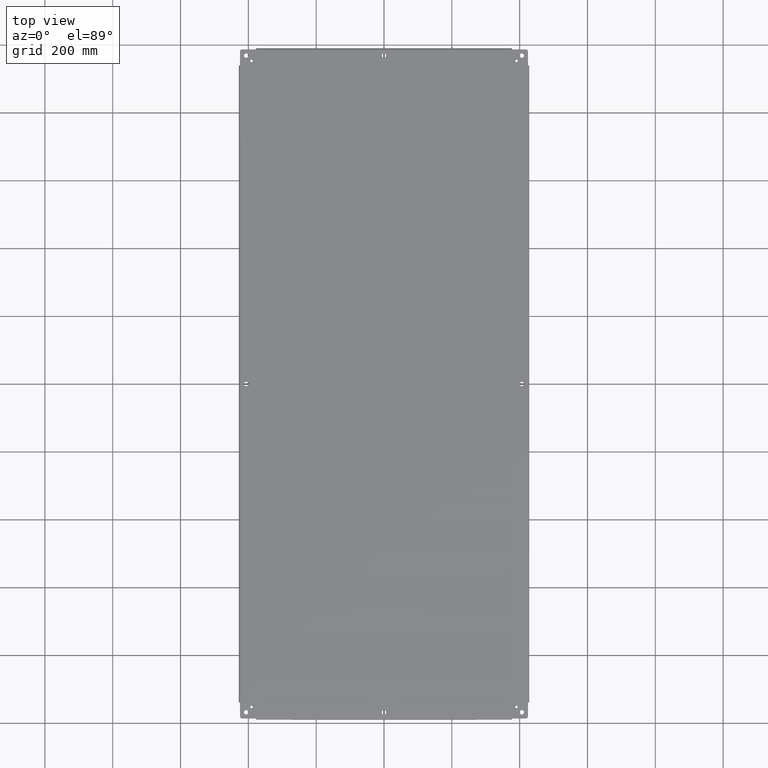
[diagram: clean part render]
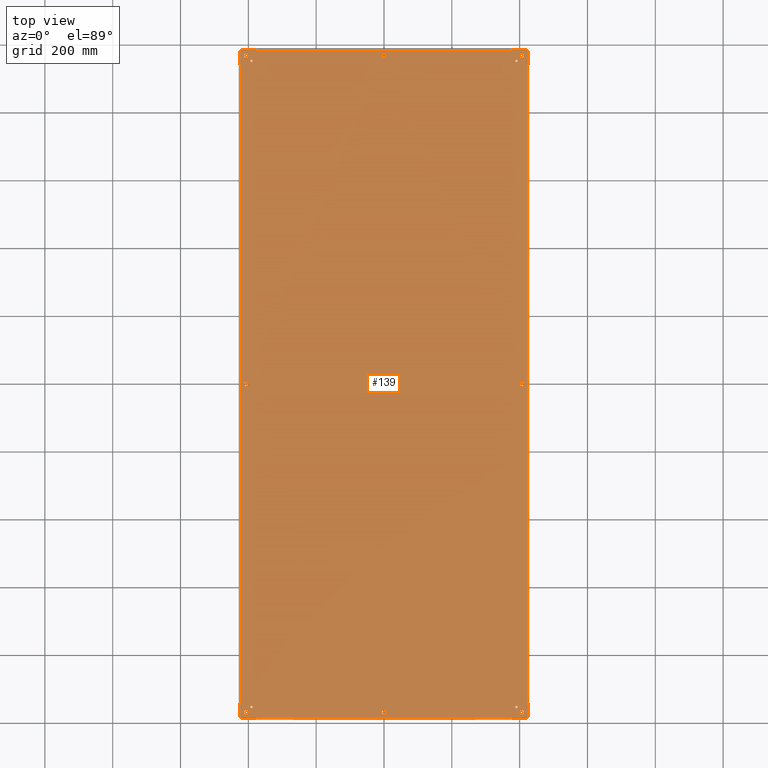
[diagram: same view with one face highlighted and labeled with its STEP entity id]
A machine part, top view. The second image highlights one B-rep face of the part: STEP entity #139.
In plain terms, the highlighted planar face has unit normal (0, 0, 1).
Its self-contained STEP definition (entity closure, byte-faithful):
#9 = CARTESIAN_POINT ( 'NONE',  ( -14.87909862184225851, -38.84374999999893419, 1.308379379606996121E-12 ) ) ;
#13 = DIRECTION ( 'NONE',  ( 0.0000000000000000000, 0.0000000000000000000, 1.000000000000000000 ) ) ;
#68 = CARTESIAN_POINT ( 'NONE',  ( -14.85163348363232494, -38.73174999999903179, 1.012432654278860541E-16 ) ) ;
#78 = LINE ( 'NONE', #439, #1048 ) ;
#86 = EDGE_CURVE ( 'NONE', #1559, #1655, #2385, .T. ) ;
#102 = DIRECTION ( 'NONE',  ( 1.000000000000000000, 0.0000000000000000000, 0.0000000000000000000 ) ) ;
#103 = CARTESIAN_POINT ( 'NONE',  ( 15.38128156646000022, 37.50628156645999667, 0.0000000000000000000 ) ) ;
#104 = EDGE_CURVE ( 'NONE', #1655, #4212, #1402, .T. ) ;
#116 = EDGE_CURVE ( 'NONE', #498, #1939, #3992, .T. ) ;
#126 = FACE_BOUND ( 'NONE', #2091, .T. ) ;
#139 = ADVANCED_FACE ( 'NONE', ( #1445, #3039, #4035, #2135, #126, #2783, #1084, #787, #833, #488, #2718, #3420, #4013 ), #510, .T. ) ;
#144 = CARTESIAN_POINT ( 'NONE',  ( -15.24078156646000082, 37.50628156645999667, 0.0000000000000000000 ) ) ;
#158 = EDGE_CURVE ( 'NONE', #2409, #498, #2090, .T. ) ;
#174 = DIRECTION ( 'NONE',  ( 0.1736481776725027903, 0.9848077530112254729, 0.0000000000000000000 ) ) ;
#186 = VERTEX_POINT ( 'NONE', #484 ) ;
#191 = DIRECTION ( 'NONE',  ( 1.000000000000000000, 0.0000000000000000000, -0.0000000000000000000 ) ) ;
#205 = ORIENTED_EDGE ( 'NONE', *, *, #2096, .T. ) ;
#207 = VERTEX_POINT ( 'NONE', #4095 ) ;
#217 = VERTEX_POINT ( 'NONE', #2312 ) ;
#229 = DIRECTION ( 'NONE',  ( 1.000000000000000000, 0.0000000000000000000, 0.0000000000000000000 ) ) ;
#236 = DIRECTION ( 'NONE',  ( 1.000000000000000000, 0.0000000000000000000, 0.0000000000000000000 ) ) ;
#243 = ORIENTED_EDGE ( 'NONE', *, *, #2555, .T. ) ;
#263 = EDGE_CURVE ( 'NONE', #1522, #2378, #3434, .T. ) ;
#288 = VECTOR ( 'NONE', #3531, 39.37007874015748143 ) ;
#295 = DIRECTION ( 'NONE',  ( 0.0000000000000000000, 0.0000000000000000000, 1.000000000000000000 ) ) ;
#308 = CARTESIAN_POINT ( 'NONE',  ( -14.85934999999999917, 38.73174999999999812, 0.0000000000000000000 ) ) ;
#311 = ORIENTED_EDGE ( 'NONE', *, *, #3470, .T. ) ;
#351 = DIRECTION ( 'NONE',  ( 1.000000000000000000, 0.0000000000000000000, 0.0000000000000000000 ) ) ;
#357 = LINE ( 'NONE', #68, #750 ) ;
#375 = CARTESIAN_POINT ( 'NONE',  ( 16.71874999999893063, -37.00409862184226739, -9.384591491516384957E-15 ) ) ;
#376 = CARTESIAN_POINT ( 'NONE',  ( 16.00000000000000000, -38.12500000000000000, 0.0000000000000000000 ) ) ;
#382 = VERTEX_POINT ( 'NONE', #1163 ) ;
#384 = CARTESIAN_POINT ( 'NONE',  ( 16.46875000000000000, -38.84375000000000000, 0.0000000000000000000 ) ) ;
#391 = CARTESIAN_POINT ( 'NONE',  ( 14.87909862183932574, -38.84374999999926104, 1.065208258285256708E-13 ) ) ;
#400 = AXIS2_PLACEMENT_3D ( 'NONE', #1811, #2407, #3105 ) ;
#439 = CARTESIAN_POINT ( 'NONE',  ( 14.85163348363232139, 38.73174999999902468, 1.012077163817345832E-16 ) ) ;
#458 = CARTESIAN_POINT ( 'NONE',  ( -16.60674999999904244, 36.97663348363231961, 8.164618948274968644E-17 ) ) ;
#482 = ORIENTED_EDGE ( 'NONE', *, *, #4109, .T. ) ;
#484 = CARTESIAN_POINT ( 'NONE',  ( 0.2500000000000000000, -38.12500000000000000, 0.0000000000000000000 ) ) ;
#488 = FACE_BOUND ( 'NONE', #4136, .T. ) ;
#498 = VERTEX_POINT ( 'NONE', #2505 ) ;
#506 = EDGE_CURVE ( 'NONE', #861, #1278, #2819, .T. ) ;
#508 = CARTESIAN_POINT ( 'NONE',  ( -14.87909862183932574, 38.84374999999926104, 1.065208258285256708E-13 ) ) ;
#510 = PLANE ( 'NONE',  #400 ) ;
#525 = VERTEX_POINT ( 'NONE', #1190 ) ;
#559 = VECTOR ( 'NONE', #1948, 39.37007874015748143 ) ;
#567 = DIRECTION ( 'NONE',  ( 1.000000000000000000, 0.0000000000000000000, 0.0000000000000000000 ) ) ;
#572 = AXIS2_PLACEMENT_3D ( 'NONE', #3766, #2853, #236 ) ;
#582 = VECTOR ( 'NONE', #174, 39.37007874015748143 ) ;
#588 = DIRECTION ( 'NONE',  ( -0.0000000000000000000, -0.0000000000000000000, -1.000000000000000000 ) ) ;
#612 = DIRECTION ( 'NONE',  ( 1.000000000000000000, 0.0000000000000000000, 0.0000000000000000000 ) ) ;
#626 = VECTOR ( 'NONE', #749, 39.37007874015748143 ) ;
#640 = ORIENTED_EDGE ( 'NONE', *, *, #2812, .T. ) ;
#642 = CIRCLE ( 'NONE', #2009, 0.2500000000000008882 ) ;
#644 = CARTESIAN_POINT ( 'NONE',  ( -14.84374999999999822, 38.73174999999996260, 6.114940551461584103E-17 ) ) ;
#665 = DIRECTION ( 'NONE',  ( -0.9848077530112269162, 0.1736481776724940196, 0.0000000000000000000 ) ) ;
#674 = EDGE_CURVE ( 'NONE', #2456, #1435, #2643, .T. ) ;
#675 = EDGE_LOOP ( 'NONE', ( #1947 ) ) ;
#701 = VECTOR ( 'NONE', #4162, 39.37007874015748143 ) ;
#711 = VERTEX_POINT ( 'NONE', #384 ) ;
#739 = CARTESIAN_POINT ( 'NONE',  ( -16.71875000000000000, 38.59375000000000000, 0.0000000000000000000 ) ) ;
#749 = DIRECTION ( 'NONE',  ( -1.000000000000000000, -0.0000000000000000000, 0.0000000000000000000 ) ) ;
#750 = VECTOR ( 'NONE', #2306, 39.37007874015748143 ) ;
#756 = CARTESIAN_POINT ( 'NONE',  ( 16.60675000000000168, 0.0000000000000000000, 0.0000000000000000000 ) ) ;
#771 = VECTOR ( 'NONE', #1107, 39.37007874015748143 ) ;
#787 = FACE_BOUND ( 'NONE', #1449, .T. ) ;
#805 = CARTESIAN_POINT ( 'NONE',  ( -15.24078156646000082, -37.50628156645999667, 0.0000000000000000000 ) ) ;
#806 = DIRECTION ( 'NONE',  ( 1.000000000000000000, 0.0000000000000000000, -0.0000000000000000000 ) ) ;
#809 = CARTESIAN_POINT ( 'NONE',  ( 0.0000000000000000000, -38.73174999999999812, 0.0000000000000000000 ) ) ;
#812 = EDGE_CURVE ( 'NONE', #1122, #1122, #2336, .T. ) ;
#813 = ORIENTED_EDGE ( 'NONE', *, *, #4042, .T. ) ;
#817 = EDGE_LOOP ( 'NONE', ( #3317 ) ) ;
#825 = ORIENTED_EDGE ( 'NONE', *, *, #4004, .T. ) ;
#829 = DIRECTION ( 'NONE',  ( -0.0000000000000000000, -0.0000000000000000000, -1.000000000000000000 ) ) ;
#833 = FACE_BOUND ( 'NONE', #675, .T. ) ;
#838 = VERTEX_POINT ( 'NONE', #1477 ) ;
#853 = VERTEX_POINT ( 'NONE', #3076 ) ;
#861 = VERTEX_POINT ( 'NONE', #1579 ) ;
#880 = ORIENTED_EDGE ( 'NONE', *, *, #1753, .T. ) ;
#882 = CARTESIAN_POINT ( 'NONE',  ( 16.60675000000000168, 0.0000000000000000000, 0.0000000000000000000 ) ) ;
#887 = ORIENTED_EDGE ( 'NONE', *, *, #674, .T. ) ;
#911 = CARTESIAN_POINT ( 'NONE',  ( -16.00000000000000000, -38.12500000000000000, 0.0000000000000000000 ) ) ;
#915 = CARTESIAN_POINT ( 'NONE',  ( 16.60675000000000168, 36.98434999999999917, 0.0000000000000000000 ) ) ;
#933 = DIRECTION ( 'NONE',  ( 0.0000000000000000000, -1.000000000000000000, -0.0000000000000000000 ) ) ;
#940 = EDGE_CURVE ( 'NONE', #1939, #2794, #1560, .T. ) ;
#944 = VECTOR ( 'NONE', #665, 39.37007874015748143 ) ;
#951 = VERTEX_POINT ( 'NONE', #3825 ) ;
#963 = AXIS2_PLACEMENT_3D ( 'NONE', #1910, #1829, #229 ) ;
#969 = LINE ( 'NONE', #2904, #701 ) ;
#1005 = ORIENTED_EDGE ( 'NONE', *, *, #812, .T. ) ;
#1028 = CARTESIAN_POINT ( 'NONE',  ( 0.0000000000000000000, 38.84375000000000000, 0.0000000000000000000 ) ) ;
#1035 = DIRECTION ( 'NONE',  ( -1.000000000000000000, 5.602124180456216314E-11, -3.428554065835727887E-14 ) ) ;
#1047 = EDGE_CURVE ( 'NONE', #2322, #4105, #1086, .T. ) ;
#1048 = VECTOR ( 'NONE', #1035, 39.37007874015748143 ) ;
#1065 = CIRCLE ( 'NONE', #1604, 0.1404999999999992366 ) ;
#1074 = EDGE_CURVE ( 'NONE', #2424, #1345, #4015, .T. ) ;
#1080 = LINE ( 'NONE', #2382, #1741 ) ;
#1084 = FACE_BOUND ( 'NONE', #2900, .T. ) ;
#1086 = LINE ( 'NONE', #3653, #3416 ) ;
#1091 = DIRECTION ( 'NONE',  ( -0.0000000000000000000, -0.0000000000000000000, -1.000000000000000000 ) ) ;
#1098 = CARTESIAN_POINT ( 'NONE',  ( 16.00000000000000000, 38.12500000000000000, 0.0000000000000000000 ) ) ;
#1100 = DIRECTION ( 'NONE',  ( -0.0000000000000000000, -0.0000000000000000000, -1.000000000000000000 ) ) ;
#1107 = DIRECTION ( 'NONE',  ( -0.1736481776725027903, -0.9848077530112254729, 0.0000000000000000000 ) ) ;
#1120 = ORIENTED_EDGE ( 'NONE', *, *, #1578, .T. ) ;
#1122 = VERTEX_POINT ( 'NONE', #3438 ) ;
#1143 = LINE ( 'NONE', #3412, #3272 ) ;
#1144 = CARTESIAN_POINT ( 'NONE',  ( 16.25000000000000000, 0.0000000000000000000, 0.0000000000000000000 ) ) ;
#1161 = VERTEX_POINT ( 'NONE', #3042 ) ;
#1162 = VECTOR ( 'NONE', #2617, 39.37007874015748143 ) ;
#1163 = CARTESIAN_POINT ( 'NONE',  ( -16.71875000000000000, -38.59375000000000000, 0.0000000000000000000 ) ) ;
#1177 = VECTOR ( 'NONE', #3968, 39.37007874015748143 ) ;
#1190 = CARTESIAN_POINT ( 'NONE',  ( -15.74999999999999822, -38.12500000000000000, 0.0000000000000000000 ) ) ;
#1191 = CARTESIAN_POINT ( 'NONE',  ( 16.00000000000000000, 0.0000000000000000000, 0.0000000000000000000 ) ) ;
#1197 = CARTESIAN_POINT ( 'NONE',  ( -16.71874999999925393, -37.00409862183933285, 1.057395138251940133E-13 ) ) ;
#1212 = DIRECTION ( 'NONE',  ( -0.0000000000000000000, -0.0000000000000000000, -1.000000000000000000 ) ) ;
#1231 = DIRECTION ( 'NONE',  ( -0.0000000000000000000, -0.0000000000000000000, -1.000000000000000000 ) ) ;
#1241 = CIRCLE ( 'NONE', #963, 0.1404999999999992366 ) ;
#1266 = CARTESIAN_POINT ( 'NONE',  ( 16.46875000000000000, -38.59375000000000000, 0.0000000000000000000 ) ) ;
#1278 = VERTEX_POINT ( 'NONE', #3463 ) ;
#1283 = CARTESIAN_POINT ( 'NONE',  ( -16.60674999999884704, 36.98434999999926021, 1.021160215475766718E-16 ) ) ;
#1302 = ORIENTED_EDGE ( 'NONE', *, *, #3462, .T. ) ;
#1305 = DIRECTION ( 'NONE',  ( -1.000000000000000000, -0.0000000000000000000, 0.0000000000000000000 ) ) ;
#1316 = AXIS2_PLACEMENT_3D ( 'NONE', #1815, #2458, #3151 ) ;
#1334 = LINE ( 'NONE', #3629, #3325 ) ;
#1345 = VERTEX_POINT ( 'NONE', #2926 ) ;
#1347 = EDGE_CURVE ( 'NONE', #711, #217, #3909, .T. ) ;
#1349 = ORIENTED_EDGE ( 'NONE', *, *, #2971, .T. ) ;
#1396 = VERTEX_POINT ( 'NONE', #739 ) ;
#1398 = CARTESIAN_POINT ( 'NONE',  ( 0.0000000000000000000, 38.12500000000000000, 0.0000000000000000000 ) ) ;
#1402 = LINE ( 'NONE', #3061, #1694 ) ;
#1416 = CARTESIAN_POINT ( 'NONE',  ( 0.0000000000000000000, 38.73174999999999812, 0.0000000000000000000 ) ) ;
#1422 = EDGE_CURVE ( 'NONE', #2107, #2107, #4121, .T. ) ;
#1430 = EDGE_CURVE ( 'NONE', #4075, #4075, #2019, .T. ) ;
#1435 = VERTEX_POINT ( 'NONE', #2677 ) ;
#1440 = VERTEX_POINT ( 'NONE', #2426 ) ;
#1445 = FACE_BOUND ( 'NONE', #2313, .T. ) ;
#1449 = EDGE_LOOP ( 'NONE', ( #243 ) ) ;
#1452 = EDGE_LOOP ( 'NONE', ( #2658 ) ) ;
#1477 = CARTESIAN_POINT ( 'NONE',  ( -16.71874999999892353, 37.00409862184226029, -9.462491844460717448E-15 ) ) ;
#1497 = EDGE_CURVE ( 'NONE', #4212, #711, #1080, .T. ) ;
#1522 = VERTEX_POINT ( 'NONE', #3797 ) ;
#1551 = DIRECTION ( 'NONE',  ( 1.000000000000000000, 0.0000000000000000000, 0.0000000000000000000 ) ) ;
#1553 = DIRECTION ( 'NONE',  ( 1.000000000000000000, 0.0000000000000000000, 0.0000000000000000000 ) ) ;
#1559 = VERTEX_POINT ( 'NONE', #4076 ) ;
#1560 = LINE ( 'NONE', #882, #3344 ) ;
#1577 = ORIENTED_EDGE ( 'NONE', *, *, #1430, .T. ) ;
#1578 = EDGE_CURVE ( 'NONE', #4053, #4053, #1065, .T. ) ;
#1579 = CARTESIAN_POINT ( 'NONE',  ( -16.60674999999984536, 36.96875000000000000, 2.966581871966592333E-17 ) ) ;
#1595 = CARTESIAN_POINT ( 'NONE',  ( 16.46875000000000000, 38.59375000000000000, 0.0000000000000000000 ) ) ;
#1602 = ORIENTED_EDGE ( 'NONE', *, *, #2757, .T. ) ;
#1604 = AXIS2_PLACEMENT_3D ( 'NONE', #2824, #1212, #1551 ) ;
#1615 = EDGE_LOOP ( 'NONE', ( #640, #2578, #813, #3343, #482, #1602, #3335, #2000, #887, #2499, #205, #1349, #3783, #2331, #1967, #1916, #311, #880, #1905, #3178, #3387, #2205, #2626, #2789, #3847, #2742, #3134, #2724, #3208, #1631, #2119, #3620 ) ) ;
#1619 = EDGE_CURVE ( 'NONE', #2130, #2130, #1664, .T. ) ;
#1631 = ORIENTED_EDGE ( 'NONE', *, *, #940, .T. ) ;
#1648 = CARTESIAN_POINT ( 'NONE',  ( 14.85934999999999917, -38.73174999999999812, 0.0000000000000000000 ) ) ;
#1655 = VERTEX_POINT ( 'NONE', #1648 ) ;
#1664 = CIRCLE ( 'NONE', #3498, 0.2500000000000008882 ) ;
#1692 = LINE ( 'NONE', #3942, #2333 ) ;
#1694 = VECTOR ( 'NONE', #2112, 39.37007874015748143 ) ;
#1709 = DIRECTION ( 'NONE',  ( -5.765292845906398495E-11, -1.000000000000000000, -1.588616518028581853E-14 ) ) ;
#1718 = CARTESIAN_POINT ( 'NONE',  ( 15.38128156646000022, -37.50628156645999667, 0.0000000000000000000 ) ) ;
#1726 = CIRCLE ( 'NONE', #1994, 0.2500000000000008882 ) ;
#1733 = EDGE_LOOP ( 'NONE', ( #1005 ) ) ;
#1741 = VECTOR ( 'NONE', #806, 39.37007874015748143 ) ;
#1753 = EDGE_CURVE ( 'NONE', #382, #3637, #642, .T. ) ;
#1765 = ORIENTED_EDGE ( 'NONE', *, *, #2848, .T. ) ;
#1782 = CARTESIAN_POINT ( 'NONE',  ( 15.52178156645999962, 37.50628156645999667, 0.0000000000000000000 ) ) ;
#1787 = AXIS2_PLACEMENT_3D ( 'NONE', #3143, #1231, #567 ) ;
#1788 = CARTESIAN_POINT ( 'NONE',  ( 14.87909862184000254, 38.84375000000000000, 0.0000000000000000000 ) ) ;
#1792 = LINE ( 'NONE', #3088, #582 ) ;
#1799 = ORIENTED_EDGE ( 'NONE', *, *, #2641, .T. ) ;
#1811 = CARTESIAN_POINT ( 'NONE',  ( 0.0000000000000000000, 0.0000000000000000000, 0.0000000000000000000 ) ) ;
#1815 = CARTESIAN_POINT ( 'NONE',  ( -16.46875000000000000, 38.59375000000000000, 0.0000000000000000000 ) ) ;
#1821 = VERTEX_POINT ( 'NONE', #3769 ) ;
#1822 = CARTESIAN_POINT ( 'NONE',  ( -16.60675000000000168, -36.98434999999999917, 0.0000000000000000000 ) ) ;
#1829 = DIRECTION ( 'NONE',  ( -0.0000000000000000000, -0.0000000000000000000, -1.000000000000000000 ) ) ;
#1892 = DIRECTION ( 'NONE',  ( -0.0000000000000000000, -0.0000000000000000000, -1.000000000000000000 ) ) ;
#1905 = ORIENTED_EDGE ( 'NONE', *, *, #2388, .T. ) ;
#1910 = CARTESIAN_POINT ( 'NONE',  ( -15.38128156646000022, 37.50628156645999667, 0.0000000000000000000 ) ) ;
#1916 = ORIENTED_EDGE ( 'NONE', *, *, #263, .T. ) ;
#1939 = VERTEX_POINT ( 'NONE', #3213 ) ;
#1947 = ORIENTED_EDGE ( 'NONE', *, *, #1422, .T. ) ;
#1948 = DIRECTION ( 'NONE',  ( 0.9848077530112269162, -0.1736481776724940196, 0.0000000000000000000 ) ) ;
#1967 = ORIENTED_EDGE ( 'NONE', *, *, #2371, .T. ) ;
#1970 = VERTEX_POINT ( 'NONE', #3156 ) ;
#1993 = DIRECTION ( 'NONE',  ( -0.0000000000000000000, 1.000000000000000000, 0.0000000000000000000 ) ) ;
#1994 = AXIS2_PLACEMENT_3D ( 'NONE', #911, #1892, #1553 ) ;
#2000 = ORIENTED_EDGE ( 'NONE', *, *, #3948, .T. ) ;
#2009 = AXIS2_PLACEMENT_3D ( 'NONE', #4197, #3404, #3747 ) ;
#2014 = CIRCLE ( 'NONE', #2949, 0.2500000000000008882 ) ;
#2019 = CIRCLE ( 'NONE', #2561, 0.1404999999999992366 ) ;
#2038 = EDGE_CURVE ( 'NONE', #4019, #1821, #357, .T. ) ;
#2071 = VECTOR ( 'NONE', #2569, 39.37007874015748143 ) ;
#2084 = CARTESIAN_POINT ( 'NONE',  ( 15.52178156645999962, -37.50628156645999667, 0.0000000000000000000 ) ) ;
#2086 = DIRECTION ( 'NONE',  ( 1.000000000000000000, 0.0000000000000000000, 0.0000000000000000000 ) ) ;
#2090 = LINE ( 'NONE', #2692, #944 ) ;
#2091 = EDGE_LOOP ( 'NONE', ( #1302 ) ) ;
#2096 = EDGE_CURVE ( 'NONE', #1396, #838, #2368, .T. ) ;
#2107 = VERTEX_POINT ( 'NONE', #2084 ) ;
#2112 = DIRECTION ( 'NONE',  ( 0.1736481776725027903, -0.9848077530112254729, 0.0000000000000000000 ) ) ;
#2119 = ORIENTED_EDGE ( 'NONE', *, *, #4164, .T. ) ;
#2120 = CIRCLE ( 'NONE', #2857, 0.2500000000000008882 ) ;
#2130 = VERTEX_POINT ( 'NONE', #1144 ) ;
#2135 = FACE_BOUND ( 'NONE', #1452, .T. ) ;
#2182 = DIRECTION ( 'NONE',  ( -0.0000000000000000000, 1.000000000000000000, 0.0000000000000000000 ) ) ;
#2205 = ORIENTED_EDGE ( 'NONE', *, *, #3923, .T. ) ;
#2271 = AXIS2_PLACEMENT_3D ( 'NONE', #4001, #1091, #2418 ) ;
#2272 = VECTOR ( 'NONE', #1993, 39.37007874015748143 ) ;
#2280 = CARTESIAN_POINT ( 'NONE',  ( 14.87909862184225851, 38.84374999999893419, 1.308379379606996121E-12 ) ) ;
#2281 = CARTESIAN_POINT ( 'NONE',  ( -16.46875000000000000, -38.84375000000000000, 0.0000000000000000000 ) ) ;
#2283 = EDGE_LOOP ( 'NONE', ( #825 ) ) ;
#2288 = CIRCLE ( 'NONE', #1316, 0.2500000000000008882 ) ;
#2306 = DIRECTION ( 'NONE',  ( 1.000000000000000000, -5.547734625307664976E-11, -3.386441740945969203E-14 ) ) ;
#2312 = CARTESIAN_POINT ( 'NONE',  ( 16.71875000000000000, -38.59375000000000000, 0.0000000000000000000 ) ) ;
#2313 = EDGE_LOOP ( 'NONE', ( #1577 ) ) ;
#2316 = LINE ( 'NONE', #756, #2272 ) ;
#2320 = EDGE_CURVE ( 'NONE', #1970, #951, #2120, .T. ) ;
#2322 = VERTEX_POINT ( 'NONE', #915 ) ;
#2331 = ORIENTED_EDGE ( 'NONE', *, *, #506, .T. ) ;
#2332 = LINE ( 'NONE', #3277, #559 ) ;
#2333 = VECTOR ( 'NONE', #1305, 39.37007874015748143 ) ;
#2336 = CIRCLE ( 'NONE', #2271, 0.2500000000000008882 ) ;
#2359 = CARTESIAN_POINT ( 'NONE',  ( 16.60674999999996970, 36.96874999999999289, 3.165637069527538372E-17 ) ) ;
#2360 = LINE ( 'NONE', #3324, #3153 ) ;
#2367 = DIRECTION ( 'NONE',  ( 0.9848077530112269162, 0.1736481776724940196, 0.0000000000000000000 ) ) ;
#2368 = LINE ( 'NONE', #3977, #1162 ) ;
#2371 = EDGE_CURVE ( 'NONE', #1278, #1522, #3188, .T. ) ;
#2378 = VERTEX_POINT ( 'NONE', #1197 ) ;
#2379 = DIRECTION ( 'NONE',  ( -0.0000000000000000000, -0.0000000000000000000, -1.000000000000000000 ) ) ;
#2382 = CARTESIAN_POINT ( 'NONE',  ( 0.0000000000000000000, -38.84375000000000000, 0.0000000000000000000 ) ) ;
#2385 = LINE ( 'NONE', #809, #2984 ) ;
#2388 = EDGE_CURVE ( 'NONE', #3637, #3929, #1334, .T. ) ;
#2407 = DIRECTION ( 'NONE',  ( 0.0000000000000000000, 0.0000000000000000000, 1.000000000000000000 ) ) ;
#2409 = VERTEX_POINT ( 'NONE', #375 ) ;
#2418 = DIRECTION ( 'NONE',  ( 1.000000000000000000, 0.0000000000000000000, 0.0000000000000000000 ) ) ;
#2424 = VERTEX_POINT ( 'NONE', #2280 ) ;
#2426 = CARTESIAN_POINT ( 'NONE',  ( 16.25000000000000000, 38.12500000000000000, 0.0000000000000000000 ) ) ;
#2456 = VERTEX_POINT ( 'NONE', #508 ) ;
#2458 = DIRECTION ( 'NONE',  ( 0.0000000000000000000, 0.0000000000000000000, 1.000000000000000000 ) ) ;
#2482 = AXIS2_PLACEMENT_3D ( 'NONE', #1398, #3969, #102 ) ;
#2499 = ORIENTED_EDGE ( 'NONE', *, *, #3449, .T. ) ;
#2505 = CARTESIAN_POINT ( 'NONE',  ( 16.60674999999884704, -36.98434999999926021, 9.662123941056703035E-17 ) ) ;
#2555 = EDGE_CURVE ( 'NONE', #2734, #2734, #1241, .T. ) ;
#2561 = AXIS2_PLACEMENT_3D ( 'NONE', #103, #1100, #2086 ) ;
#2569 = DIRECTION ( 'NONE',  ( -1.000000000000000000, -0.0000000000000000000, 0.0000000000000000000 ) ) ;
#2578 = ORIENTED_EDGE ( 'NONE', *, *, #2320, .T. ) ;
#2611 = DIRECTION ( 'NONE',  ( 1.000000000000000000, 0.0000000000000000000, -0.0000000000000000000 ) ) ;
#2617 = DIRECTION ( 'NONE',  ( 0.0000000000000000000, -1.000000000000000000, -0.0000000000000000000 ) ) ;
#2626 = ORIENTED_EDGE ( 'NONE', *, *, #86, .T. ) ;
#2641 = EDGE_CURVE ( 'NONE', #4030, #4030, #3616, .T. ) ;
#2643 = LINE ( 'NONE', #1028, #626 ) ;
#2658 = ORIENTED_EDGE ( 'NONE', *, *, #1619, .T. ) ;
#2673 = DIRECTION ( 'NONE',  ( 1.000000000000000000, 0.0000000000000000000, 0.0000000000000000000 ) ) ;
#2677 = CARTESIAN_POINT ( 'NONE',  ( -16.46875000000000000, 38.84375000000000000, 0.0000000000000000000 ) ) ;
#2680 = DIRECTION ( 'NONE',  ( -0.0000000000000000000, -0.0000000000000000000, -1.000000000000000000 ) ) ;
#2692 = CARTESIAN_POINT ( 'NONE',  ( 16.71875000000000000, -37.00409862184000076, 0.0000000000000000000 ) ) ;
#2718 = FACE_BOUND ( 'NONE', #3229, .T. ) ;
#2724 = ORIENTED_EDGE ( 'NONE', *, *, #158, .T. ) ;
#2728 = LINE ( 'NONE', #458, #3955 ) ;
#2734 = VERTEX_POINT ( 'NONE', #144 ) ;
#2742 = ORIENTED_EDGE ( 'NONE', *, *, #1347, .T. ) ;
#2757 = EDGE_CURVE ( 'NONE', #3973, #3010, #1692, .T. ) ;
#2783 = FACE_BOUND ( 'NONE', #3472, .T. ) ;
#2789 = ORIENTED_EDGE ( 'NONE', *, *, #104, .T. ) ;
#2794 = VERTEX_POINT ( 'NONE', #2359 ) ;
#2805 = EDGE_CURVE ( 'NONE', #3010, #1161, #3987, .T. ) ;
#2812 = EDGE_CURVE ( 'NONE', #4105, #1970, #1143, .T. ) ;
#2819 = LINE ( 'NONE', #3216, #288 ) ;
#2824 = CARTESIAN_POINT ( 'NONE',  ( -15.38128156646000022, -37.50628156645999667, 0.0000000000000000000 ) ) ;
#2848 = EDGE_CURVE ( 'NONE', #1440, #1440, #3951, .T. ) ;
#2853 = DIRECTION ( 'NONE',  ( -0.0000000000000000000, -0.0000000000000000000, -1.000000000000000000 ) ) ;
#2857 = AXIS2_PLACEMENT_3D ( 'NONE', #1595, #295, #612 ) ;
#2886 = LINE ( 'NONE', #3836, #2071 ) ;
#2900 = EDGE_LOOP ( 'NONE', ( #1120 ) ) ;
#2904 = CARTESIAN_POINT ( 'NONE',  ( 0.0000000000000000000, -38.73174999999999812, 0.0000000000000000000 ) ) ;
#2926 = CARTESIAN_POINT ( 'NONE',  ( 14.85934999999926021, 38.73174999999883994, 1.828863260006820596E-16 ) ) ;
#2949 = AXIS2_PLACEMENT_3D ( 'NONE', #376, #2680, #2976 ) ;
#2971 = EDGE_CURVE ( 'NONE', #838, #3967, #2332, .T. ) ;
#2976 = DIRECTION ( 'NONE',  ( 1.000000000000000000, 0.0000000000000000000, 0.0000000000000000000 ) ) ;
#2984 = VECTOR ( 'NONE', #191, 39.37007874015748143 ) ;
#3010 = VERTEX_POINT ( 'NONE', #644 ) ;
#3039 = FACE_BOUND ( 'NONE', #817, .T. ) ;
#3042 = CARTESIAN_POINT ( 'NONE',  ( -14.85934999999999917, 38.73174999999999812, 0.0000000000000000000 ) ) ;
#3055 = DIRECTION ( 'NONE',  ( -0.0000000000000000000, 1.000000000000000000, 0.0000000000000000000 ) ) ;
#3061 = CARTESIAN_POINT ( 'NONE',  ( 14.85934999999999917, -38.73174999999999812, 0.0000000000000000000 ) ) ;
#3076 = CARTESIAN_POINT ( 'NONE',  ( 16.25000000000000000, -38.12500000000000000, 0.0000000000000000000 ) ) ;
#3080 = DIRECTION ( 'NONE',  ( 1.000000000000000000, 0.0000000000000000000, 0.0000000000000000000 ) ) ;
#3088 = CARTESIAN_POINT ( 'NONE',  ( -14.87909862184000254, -38.84375000000000000, 0.0000000000000000000 ) ) ;
#3095 = EDGE_CURVE ( 'NONE', #3967, #861, #2728, .T. ) ;
#3102 = AXIS2_PLACEMENT_3D ( 'NONE', #1718, #829, #3080 ) ;
#3105 = DIRECTION ( 'NONE',  ( 1.000000000000000000, 0.0000000000000000000, -0.0000000000000000000 ) ) ;
#3134 = ORIENTED_EDGE ( 'NONE', *, *, #4187, .T. ) ;
#3143 = CARTESIAN_POINT ( 'NONE',  ( -16.00000000000000000, 38.12500000000000000, 0.0000000000000000000 ) ) ;
#3151 = DIRECTION ( 'NONE',  ( 1.000000000000000000, 0.0000000000000000000, 0.0000000000000000000 ) ) ;
#3153 = VECTOR ( 'NONE', #4008, 39.37007874015748143 ) ;
#3156 = CARTESIAN_POINT ( 'NONE',  ( 16.71875000000000000, 38.59375000000000000, 0.0000000000000000000 ) ) ;
#3168 = CIRCLE ( 'NONE', #572, 0.2500000000000000000 ) ;
#3170 = AXIS2_PLACEMENT_3D ( 'NONE', #1266, #13, #351 ) ;
#3178 = ORIENTED_EDGE ( 'NONE', *, *, #3530, .T. ) ;
#3188 = LINE ( 'NONE', #3541, #3936 ) ;
#3208 = ORIENTED_EDGE ( 'NONE', *, *, #116, .T. ) ;
#3213 = CARTESIAN_POINT ( 'NONE',  ( 16.60674999999984180, -36.96874999999999289, 4.155896150892343282E-18 ) ) ;
#3216 = CARTESIAN_POINT ( 'NONE',  ( -16.60675000000000168, 0.0000000000000000000, 0.0000000000000000000 ) ) ;
#3229 = EDGE_LOOP ( 'NONE', ( #1799 ) ) ;
#3238 = DIRECTION ( 'NONE',  ( 1.000000000000000000, 0.0000000000000000000, 0.0000000000000000000 ) ) ;
#3272 = VECTOR ( 'NONE', #3055, 39.37007874015748143 ) ;
#3277 = CARTESIAN_POINT ( 'NONE',  ( -16.71875000000000000, 37.00409862184000076, 0.0000000000000000000 ) ) ;
#3317 = ORIENTED_EDGE ( 'NONE', *, *, #3704, .T. ) ;
#3324 = CARTESIAN_POINT ( 'NONE',  ( 16.71875000000000000, 0.0000000000000000000, 0.0000000000000000000 ) ) ;
#3325 = VECTOR ( 'NONE', #2611, 39.37007874015748143 ) ;
#3335 = ORIENTED_EDGE ( 'NONE', *, *, #2805, .T. ) ;
#3339 = AXIS2_PLACEMENT_3D ( 'NONE', #1098, #2379, #2673 ) ;
#3343 = ORIENTED_EDGE ( 'NONE', *, *, #1074, .T. ) ;
#3344 = VECTOR ( 'NONE', #2182, 39.37007874015748143 ) ;
#3348 = VECTOR ( 'NONE', #4199, 39.37007874015748143 ) ;
#3387 = ORIENTED_EDGE ( 'NONE', *, *, #2038, .T. ) ;
#3404 = DIRECTION ( 'NONE',  ( 0.0000000000000000000, 0.0000000000000000000, 1.000000000000000000 ) ) ;
#3412 = CARTESIAN_POINT ( 'NONE',  ( 16.71875000000000000, 0.0000000000000000000, 0.0000000000000000000 ) ) ;
#3416 = VECTOR ( 'NONE', #2367, 39.37007874015748143 ) ;
#3420 = FACE_BOUND ( 'NONE', #2283, .T. ) ;
#3421 = CIRCLE ( 'NONE', #2482, 0.2500000000000000000 ) ;
#3434 = LINE ( 'NONE', #1822, #4196 ) ;
#3438 = CARTESIAN_POINT ( 'NONE',  ( -15.74999999999999822, 0.0000000000000000000, 0.0000000000000000000 ) ) ;
#3449 = EDGE_CURVE ( 'NONE', #1435, #1396, #2288, .T. ) ;
#3462 = EDGE_CURVE ( 'NONE', #186, #186, #3168, .T. ) ;
#3463 = CARTESIAN_POINT ( 'NONE',  ( -16.60674999999997326, -36.96875000000000000, 4.547918829767886618E-17 ) ) ;
#3470 = EDGE_CURVE ( 'NONE', #2378, #382, #4084, .T. ) ;
#3472 = EDGE_LOOP ( 'NONE', ( #4126 ) ) ;
#3487 = DIRECTION ( 'NONE',  ( 0.0000000000000000000, -1.000000000000000000, -0.0000000000000000000 ) ) ;
#3498 = AXIS2_PLACEMENT_3D ( 'NONE', #1191, #588, #3238 ) ;
#3530 = EDGE_CURVE ( 'NONE', #3929, #4019, #1792, .T. ) ;
#3531 = DIRECTION ( 'NONE',  ( 0.0000000000000000000, -1.000000000000000000, -0.0000000000000000000 ) ) ;
#3541 = CARTESIAN_POINT ( 'NONE',  ( -16.60675000000000168, 0.0000000000000000000, 0.0000000000000000000 ) ) ;
#3616 = CIRCLE ( 'NONE', #1787, 0.2500000000000008882 ) ;
#3620 = ORIENTED_EDGE ( 'NONE', *, *, #1047, .T. ) ;
#3629 = CARTESIAN_POINT ( 'NONE',  ( 0.0000000000000000000, -38.84375000000000000, 0.0000000000000000000 ) ) ;
#3637 = VERTEX_POINT ( 'NONE', #2281 ) ;
#3653 = CARTESIAN_POINT ( 'NONE',  ( 16.60675000000000168, 36.98434999999999917, 0.0000000000000000000 ) ) ;
#3663 = CARTESIAN_POINT ( 'NONE',  ( 16.71874999999925748, 37.00409862183933285, 1.068809180673331343E-13 ) ) ;
#3704 = EDGE_CURVE ( 'NONE', #853, #853, #2014, .T. ) ;
#3708 = DIRECTION ( 'NONE',  ( -0.9848077530112269162, -0.1736481776724940196, 0.0000000000000000000 ) ) ;
#3716 = CARTESIAN_POINT ( 'NONE',  ( 16.60674999999904244, -36.97663348363231961, 5.952290613180775445E-17 ) ) ;
#3738 = DIRECTION ( 'NONE',  ( 5.738098068328247355E-11, 1.000000000000000000, -1.732900785026744034E-14 ) ) ;
#3743 = CARTESIAN_POINT ( 'NONE',  ( -16.71875000000000000, 0.0000000000000000000, 0.0000000000000000000 ) ) ;
#3747 = DIRECTION ( 'NONE',  ( 1.000000000000000000, 0.0000000000000000000, 0.0000000000000000000 ) ) ;
#3766 = CARTESIAN_POINT ( 'NONE',  ( 0.0000000000000000000, -38.12500000000000000, 0.0000000000000000000 ) ) ;
#3769 = CARTESIAN_POINT ( 'NONE',  ( -14.84374999999999822, -38.73174999999983470, 8.934894032374589591E-18 ) ) ;
#3777 = CARTESIAN_POINT ( 'NONE',  ( -15.74999999999999822, 38.12500000000000000, 0.0000000000000000000 ) ) ;
#3783 = ORIENTED_EDGE ( 'NONE', *, *, #3095, .T. ) ;
#3797 = CARTESIAN_POINT ( 'NONE',  ( -16.60675000000000168, -36.98434999999999917, 0.0000000000000000000 ) ) ;
#3816 = LINE ( 'NONE', #308, #3348 ) ;
#3825 = CARTESIAN_POINT ( 'NONE',  ( 16.46875000000000000, 38.84375000000000000, 0.0000000000000000000 ) ) ;
#3835 = VECTOR ( 'NONE', #3487, 39.37007874015748143 ) ;
#3836 = CARTESIAN_POINT ( 'NONE',  ( 0.0000000000000000000, 38.84375000000000000, 0.0000000000000000000 ) ) ;
#3847 = ORIENTED_EDGE ( 'NONE', *, *, #1497, .T. ) ;
#3909 = CIRCLE ( 'NONE', #3170, 0.2500000000000008882 ) ;
#3923 = EDGE_CURVE ( 'NONE', #1821, #1559, #969, .T. ) ;
#3929 = VERTEX_POINT ( 'NONE', #9 ) ;
#3936 = VECTOR ( 'NONE', #933, 39.37007874015748143 ) ;
#3942 = CARTESIAN_POINT ( 'NONE',  ( 0.0000000000000000000, 38.73174999999999812, 0.0000000000000000000 ) ) ;
#3948 = EDGE_CURVE ( 'NONE', #1161, #2456, #3816, .T. ) ;
#3951 = CIRCLE ( 'NONE', #3339, 0.2500000000000008882 ) ;
#3955 = VECTOR ( 'NONE', #1709, 39.37007874015748143 ) ;
#3967 = VERTEX_POINT ( 'NONE', #1283 ) ;
#3968 = DIRECTION ( 'NONE',  ( -1.000000000000000000, -0.0000000000000000000, 0.0000000000000000000 ) ) ;
#3969 = DIRECTION ( 'NONE',  ( -0.0000000000000000000, -0.0000000000000000000, -1.000000000000000000 ) ) ;
#3973 = VERTEX_POINT ( 'NONE', #4143 ) ;
#3977 = CARTESIAN_POINT ( 'NONE',  ( -16.71875000000000000, 0.0000000000000000000, 0.0000000000000000000 ) ) ;
#3987 = LINE ( 'NONE', #1416, #1177 ) ;
#3992 = LINE ( 'NONE', #3716, #4070 ) ;
#4001 = CARTESIAN_POINT ( 'NONE',  ( -16.00000000000000000, 0.0000000000000000000, 0.0000000000000000000 ) ) ;
#4004 = EDGE_CURVE ( 'NONE', #525, #525, #1726, .T. ) ;
#4008 = DIRECTION ( 'NONE',  ( -0.0000000000000000000, 1.000000000000000000, 0.0000000000000000000 ) ) ;
#4013 = FACE_OUTER_BOUND ( 'NONE', #1615, .T. ) ;
#4015 = LINE ( 'NONE', #1788, #771 ) ;
#4019 = VERTEX_POINT ( 'NONE', #4179 ) ;
#4030 = VERTEX_POINT ( 'NONE', #3777 ) ;
#4035 = FACE_BOUND ( 'NONE', #1733, .T. ) ;
#4042 = EDGE_CURVE ( 'NONE', #951, #2424, #2886, .T. ) ;
#4053 = VERTEX_POINT ( 'NONE', #805 ) ;
#4070 = VECTOR ( 'NONE', #3738, 39.37007874015748143 ) ;
#4075 = VERTEX_POINT ( 'NONE', #1782 ) ;
#4076 = CARTESIAN_POINT ( 'NONE',  ( 14.84374999999999822, -38.73174999999996260, 6.114940551461584103E-17 ) ) ;
#4084 = LINE ( 'NONE', #3743, #3835 ) ;
#4095 = CARTESIAN_POINT ( 'NONE',  ( 0.2500000000000000000, 38.12500000000000000, 0.0000000000000000000 ) ) ;
#4105 = VERTEX_POINT ( 'NONE', #3663 ) ;
#4109 = EDGE_CURVE ( 'NONE', #1345, #3973, #78, .T. ) ;
#4115 = EDGE_CURVE ( 'NONE', #207, #207, #3421, .T. ) ;
#4121 = CIRCLE ( 'NONE', #3102, 0.1404999999999992366 ) ;
#4126 = ORIENTED_EDGE ( 'NONE', *, *, #4115, .T. ) ;
#4136 = EDGE_LOOP ( 'NONE', ( #1765 ) ) ;
#4143 = CARTESIAN_POINT ( 'NONE',  ( 14.84374999999999822, 38.73174999999982759, 8.332392333187628843E-18 ) ) ;
#4162 = DIRECTION ( 'NONE',  ( 1.000000000000000000, 0.0000000000000000000, -0.0000000000000000000 ) ) ;
#4164 = EDGE_CURVE ( 'NONE', #2794, #2322, #2316, .T. ) ;
#4179 = CARTESIAN_POINT ( 'NONE',  ( -14.85934999999926021, -38.73174999999885415, 1.812792983025348600E-16 ) ) ;
#4187 = EDGE_CURVE ( 'NONE', #217, #2409, #2360, .T. ) ;
#4196 = VECTOR ( 'NONE', #3708, 39.37007874015748143 ) ;
#4197 = CARTESIAN_POINT ( 'NONE',  ( -16.46875000000000000, -38.59375000000000000, 0.0000000000000000000 ) ) ;
#4199 = DIRECTION ( 'NONE',  ( -0.1736481776725027903, 0.9848077530112254729, 0.0000000000000000000 ) ) ;
#4212 = VERTEX_POINT ( 'NONE', #391 ) ;